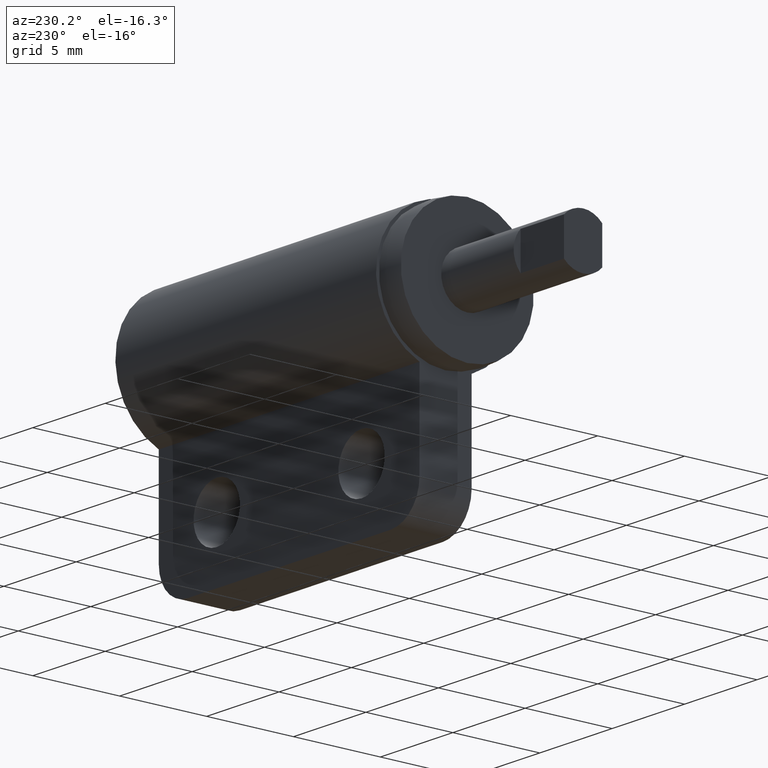
[diagram: clean part render]
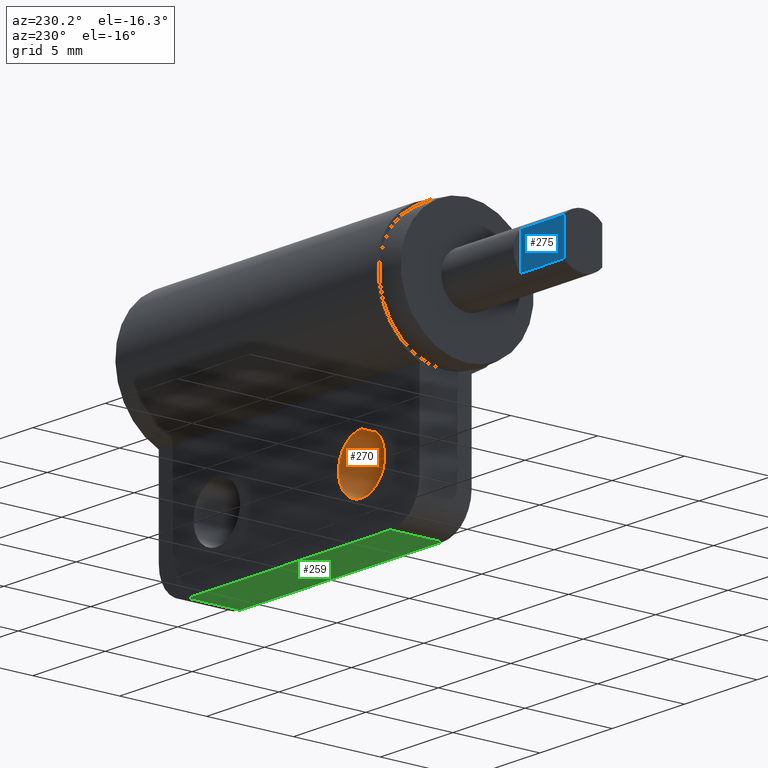
[diagram: same view with three faces highlighted in distinct colors, each labeled with its STEP entity id]
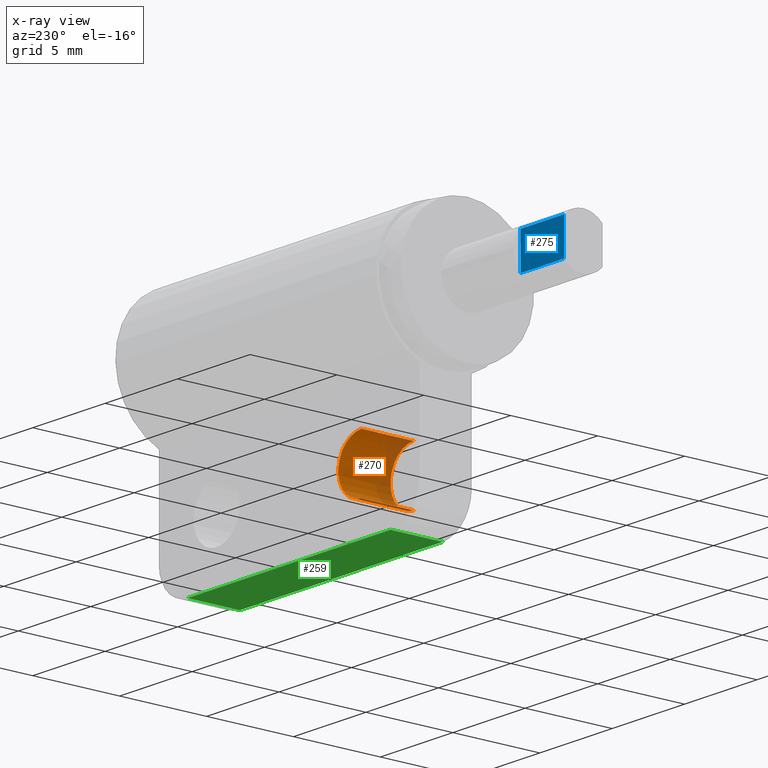
[diagram: x-ray of the same camera — body ghosted, the three highlighted faces saturated]
A machine part, auxiliary view with three faces highlighted in distinct colors.
The next image is the same camera in x-ray (body ghosted, the three faces saturated) — at least one of them is partly hidden behind the body in this view.
Their STEP definitions:

[orange] entity #270 — the highlighted cylindrical surface (edge-blend (fillet) strip) has radius 1.6 mm, axis along (0, 1, 0).
#270=ADVANCED_FACE('',(#773),#772,.F.);
#772=CYLINDRICAL_SURFACE('',#1252,1.60000000000E+00);
#773=FACE_OUTER_BOUND('',#1253,.T.);
#1249=CARTESIAN_POINT('',(1.05000000000E+01,1.80000000000E+00,-7.50000000000E+00));
#1250=DIRECTION('',(-0.00000000000E+00,1.00000000000E+00,0.00000000000E+00));
#1251=DIRECTION('',(1.11022302463E-15,-0.00000000000E+00,1.00000000000E+00));
#1252=AXIS2_PLACEMENT_3D('',#1249,#1250,#1251);
#1253=EDGE_LOOP('',(#1581,#1582,#1583,#1584));
#1581=ORIENTED_EDGE('',*,*,#1778,.T.);
#1582=ORIENTED_EDGE('',*,*,#1752,.F.);
#1583=ORIENTED_EDGE('',*,*,#1779,.T.);
#1584=ORIENTED_EDGE('',*,*,#1761,.T.);
#1752=EDGE_CURVE('',#2394,#2395,#2396,.T.);
#1761=EDGE_CURVE('',#2456,#2457,#2458,.T.);
#1778=EDGE_CURVE('',#2457,#2395,#2568,.T.);
#1779=EDGE_CURVE('',#2394,#2456,#2574,.T.);
#2394=VERTEX_POINT('',#3197);
#2395=VERTEX_POINT('',#3198);
#2396=CIRCLE('',#3202,1.60000000000E+00);
#2456=VERTEX_POINT('',#3238);
#2457=VERTEX_POINT('',#3239);
#2458=CIRCLE('',#3243,1.60000000000E+00);
#2568=LINE('',#3311,#3312);
#2574=LINE('',#3314,#3315);
#3197=CARTESIAN_POINT('',(1.05000000000E+01,1.50000000000E+00,-9.10000000000E+00));
#3198=CARTESIAN_POINT('',(1.05000000000E+01,1.50000000000E+00,-5.90000000000E+00));
#3199=CARTESIAN_POINT('',(1.05000000000E+01,1.50000000000E+00,-7.50000000000E+00));
#3200=DIRECTION('',(0.00000000000E+00,-1.00000000000E+00,0.00000000000E+00));
#3201=DIRECTION('',(-0.00000000000E+00,-0.00000000000E+00,1.00000000000E+00));
#3202=AXIS2_PLACEMENT_3D('',#3199,#3200,#3201);
#3238=CARTESIAN_POINT('',(1.05000000000E+01,-1.50000000000E+00,-9.10000000000E+00));
#3239=CARTESIAN_POINT('',(1.05000000000E+01,-1.50000000000E+00,-5.90000000000E+00));
#3240=CARTESIAN_POINT('',(1.05000000000E+01,-1.50000000000E+00,-7.50000000000E+00));
#3241=DIRECTION('',(0.00000000000E+00,-1.00000000000E+00,0.00000000000E+00));
#3242=DIRECTION('',(-0.00000000000E+00,-0.00000000000E+00,1.00000000000E+00));
#3243=AXIS2_PLACEMENT_3D('',#3240,#3241,#3242);
#3311=CARTESIAN_POINT('',(1.05000000000E+01,-1.50000000000E+00,-5.90000000000E+00));
#3312=VECTOR('',#3313,3.00000000000E+00);
#3313=DIRECTION('',(0.00000000000E+00,1.00000000000E+00,0.00000000000E+00));
#3314=CARTESIAN_POINT('',(1.05000000000E+01,1.50000000000E+00,-9.10000000000E+00));
#3315=VECTOR('',#3316,3.00000000000E+00);
#3316=DIRECTION('',(0.00000000000E+00,-1.00000000000E+00,0.00000000000E+00));

[blue] entity #275 — the highlighted planar face has unit normal (0, -1, 0).
#275=ADVANCED_FACE('',(#823),#822,.F.);
#822=PLANE('',#1277);
#823=FACE_OUTER_BOUND('',#1278,.T.);
#1274=CARTESIAN_POINT('',(-3.30000000000E+00,1.09999800000E+00,1.22375840000E+00));
#1275=DIRECTION('',(0.00000000000E+00,-1.00000000000E+00,0.00000000000E+00));
#1276=DIRECTION('',(0.00000000000E+00,0.00000000000E+00,-1.00000000000E+00));
#1277=AXIS2_PLACEMENT_3D('',#1274,#1275,#1276);
#1278=EDGE_LOOP('',(#1599,#1600,#1601,#1602));
#1599=ORIENTED_EDGE('',*,*,#1782,.T.);
#1600=ORIENTED_EDGE('',*,*,#1784,.T.);
#1601=ORIENTED_EDGE('',*,*,#1785,.T.);
#1602=ORIENTED_EDGE('',*,*,#1786,.T.);
#1782=EDGE_CURVE('',#2592,#2593,#2594,.T.);
#1784=EDGE_CURVE('',#2593,#2606,#2607,.T.);
#1785=EDGE_CURVE('',#2606,#2613,#2614,.T.);
#1786=EDGE_CURVE('',#2613,#2592,#2620,.T.);
#2592=VERTEX_POINT('',#3323);
#2593=VERTEX_POINT('',#3324);
#2594=LINE('',#3325,#3326);
#2606=VERTEX_POINT('',#3334);
#2607=LINE('',#3335,#3336);
#2613=VERTEX_POINT('',#3338);
#2614=LINE('',#3339,#3340);
#2620=LINE('',#3342,#3343);
#3323=CARTESIAN_POINT('',(0.00000000000E+00,1.09999800000E+00,1.01979800000E+00));
#3324=CARTESIAN_POINT('',(0.00000000000E+00,1.09999800000E+00,-1.01980600000E+00));
#3325=CARTESIAN_POINT('',(0.00000000000E+00,1.09999800000E+00,1.01979800000E+00));
#3326=VECTOR('',#3327,2.03960400000E+00);
#3327=DIRECTION('',(0.00000000000E+00,0.00000000000E+00,-1.00000000000E+00));
#3334=CARTESIAN_POINT('',(-3.00000000000E+00,1.09999800000E+00,-1.01980600000E+00));
#3335=CARTESIAN_POINT('',(0.00000000000E+00,1.09999800000E+00,-1.01980600000E+00));
#3336=VECTOR('',#3337,3.00000000000E+00);
#3337=DIRECTION('',(-1.00000000000E+00,0.00000000000E+00,0.00000000000E+00));
#3338=CARTESIAN_POINT('',(-3.00000000000E+00,1.09999800000E+00,1.01979800000E+00));
#3339=CARTESIAN_POINT('',(-3.00000000000E+00,1.09999800000E+00,-1.01980600000E+00));
#3340=VECTOR('',#3341,2.03960400000E+00);
#3341=DIRECTION('',(0.00000000000E+00,0.00000000000E+00,1.00000000000E+00));
#3342=CARTESIAN_POINT('',(-3.00000000000E+00,1.09999800000E+00,1.01979800000E+00));
#3343=VECTOR('',#3344,3.00000000000E+00);
#3344=DIRECTION('',(1.00000000000E+00,0.00000000000E+00,0.00000000000E+00));

[green] entity #259 — the highlighted planar face has unit normal (0, 0, 1).
#259=ADVANCED_FACE('',(#657),#656,.F.);
#656=PLANE('',#1191);
#657=FACE_OUTER_BOUND('',#1192,.T.);
#1188=CARTESIAN_POINT('',(7.10000000000E+00,-1.80000000000E+00,-1.10000000000E+01));
#1189=DIRECTION('',(0.00000000000E+00,0.00000000000E+00,1.00000000000E+00));
#1190=DIRECTION('',(1.00000000000E+00,0.00000000000E+00,0.00000000000E+00));
#1191=AXIS2_PLACEMENT_3D('',#1188,#1189,#1190);
#1192=EDGE_LOOP('',(#1519,#1520,#1521,#1522));
#1519=ORIENTED_EDGE('',*,*,#1743,.T.);
#1520=ORIENTED_EDGE('',*,*,#1744,.T.);
#1521=ORIENTED_EDGE('',*,*,#1745,.T.);
#1522=ORIENTED_EDGE('',*,*,#1746,.T.);
#1743=EDGE_CURVE('',#2332,#2333,#2334,.T.);
#1744=EDGE_CURVE('',#2333,#2340,#2341,.T.);
#1745=EDGE_CURVE('',#2340,#2347,#2348,.T.);
#1746=EDGE_CURVE('',#2347,#2332,#2354,.T.);
#2332=VERTEX_POINT('',#3160);
#2333=VERTEX_POINT('',#3161);
#2334=LINE('',#3162,#3163);
#2340=VERTEX_POINT('',#3165);
#2341=LINE('',#3166,#3167);
#2347=VERTEX_POINT('',#3169);
#2348=LINE('',#3170,#3171);
#2354=LINE('',#3173,#3174);
#3160=CARTESIAN_POINT('',(8.50000000000E+00,1.50000000000E+00,-1.10000000000E+01));
#3161=CARTESIAN_POINT('',(2.25000000000E+01,1.50000000000E+00,-1.10000000000E+01));
#3162=CARTESIAN_POINT('',(8.50000000000E+00,1.50000000000E+00,-1.10000000000E+01));
#3163=VECTOR('',#3164,1.40000000000E+01);
#3164=DIRECTION('',(1.00000000000E+00,0.00000000000E+00,0.00000000000E+00));
#3165=CARTESIAN_POINT('',(2.25000000000E+01,-1.50000000000E+00,-1.10000000000E+01));
#3166=CARTESIAN_POINT('',(2.25000000000E+01,1.50000000000E+00,-1.10000000000E+01));
#3167=VECTOR('',#3168,3.00000000000E+00);
#3168=DIRECTION('',(0.00000000000E+00,-1.00000000000E+00,0.00000000000E+00));
#3169=CARTESIAN_POINT('',(8.50000000000E+00,-1.50000000000E+00,-1.10000000000E+01));
#3170=CARTESIAN_POINT('',(2.25000000000E+01,-1.50000000000E+00,-1.10000000000E+01));
#3171=VECTOR('',#3172,1.40000000000E+01);
#3172=DIRECTION('',(-1.00000000000E+00,0.00000000000E+00,0.00000000000E+00));
#3173=CARTESIAN_POINT('',(8.50000000000E+00,-1.50000000000E+00,-1.10000000000E+01));
#3174=VECTOR('',#3175,3.00000000000E+00);
#3175=DIRECTION('',(0.00000000000E+00,1.00000000000E+00,0.00000000000E+00));